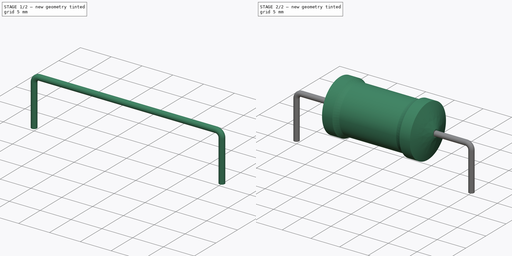
[diagram: build sequence overview — one tinted view per stage of 2, left to right]
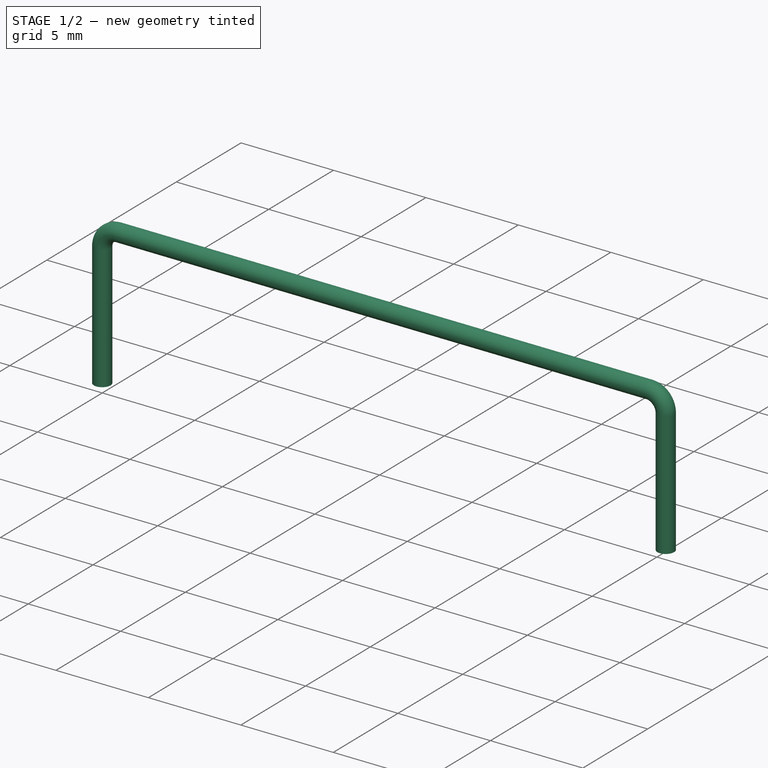
[diagram: stage 1 of 2 — iso view after this stage's code; geometry added in this stage tinted green]
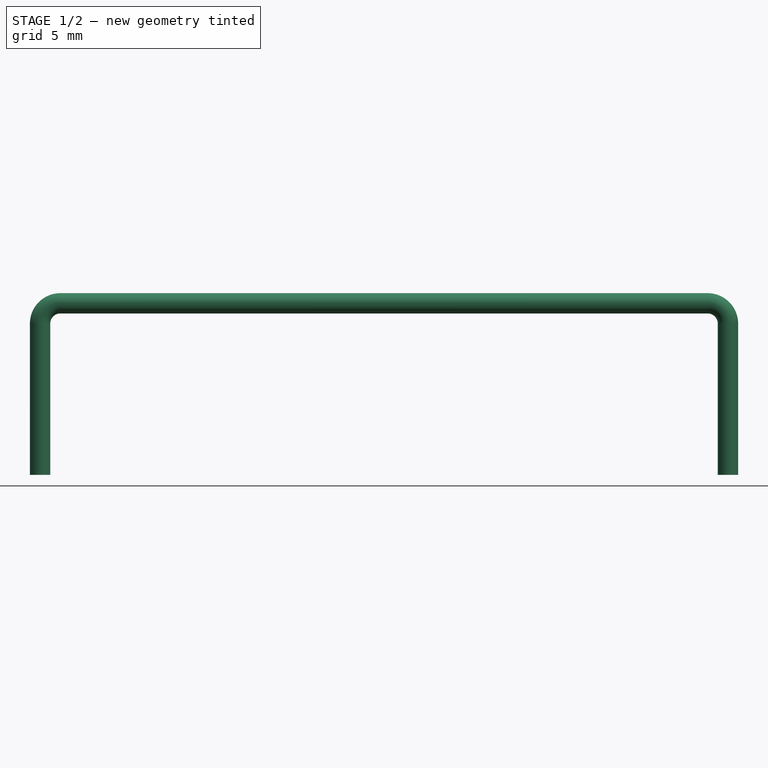
[diagram: stage 1 of 2 — front view after this stage's code; geometry added in this stage tinted green]
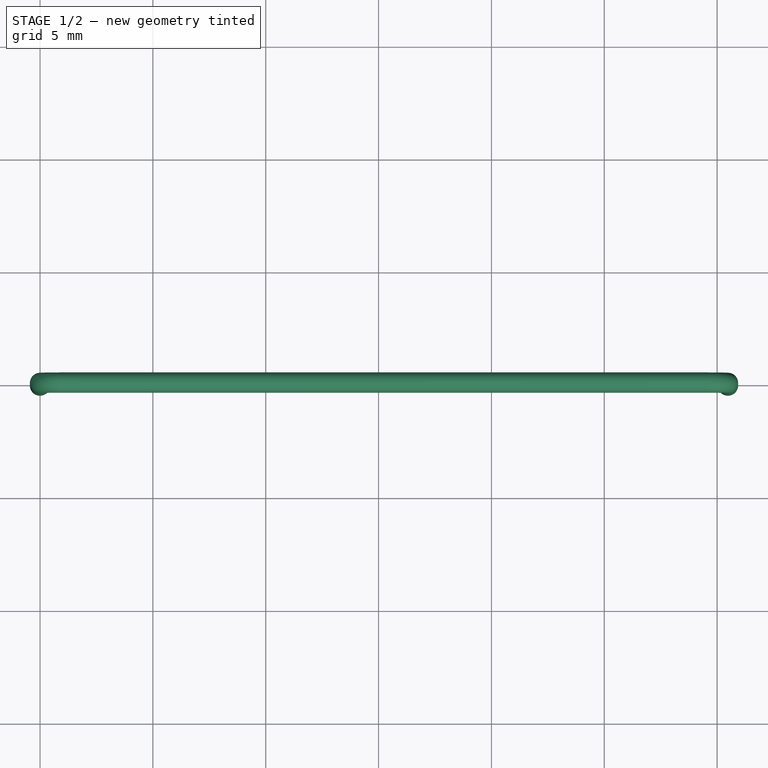
[diagram: stage 1 of 2 — top view after this stage's code; geometry added in this stage tinted green]
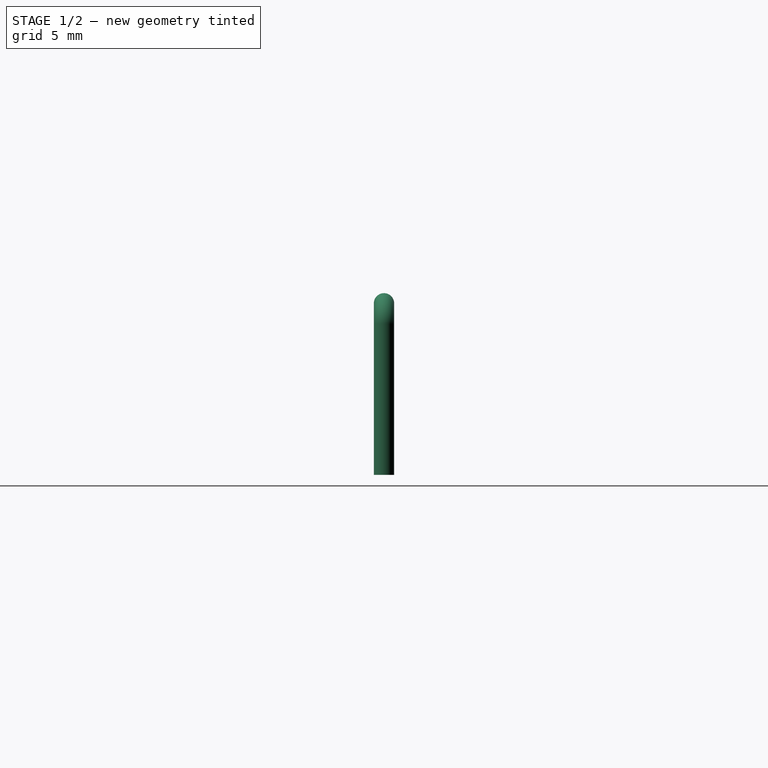
[diagram: stage 1 of 2 — right view after this stage's code; geometry added in this stage tinted green]
FCSTD DOCUMENT  (FreeCAD 0.16R6703 (Git))
Label: Resistor_Axial_DIN0918_L18.0mm_D9.0mm_P30.48mm_Horizontal
License: All rights reserved
LicenseURL: http://en.wikipedia.org/wiki/All_rights_reserved
objects: Sketcher::SketchObject×3, PartDesign::Revolution×1, Spreadsheet::Sheet×1, Part::Sweep×1
note: 6 computed .brp shape members not serialized (recipe doc carries the construction recipe); baked Part::Feature solids carry a one-line shape summary decoded from their .brp

FEATURE [Spreadsheet::Sheet] Spreadsheet  label="dimensions"
  cells = A1=L; B1(L)=18; A2=d; B2(d)=9; C2=0; A3=RM; B3(RM)=30.48; A4=d_wire; B4(d_wire)=0.8999999999999999
FEATURE [Sketcher::SketchObject] Sketch
  Placement = pos=(0,0,-2) rot=(0,0,1;0rad)
  expr: Constraints[1] = dimensions.d_wire / 2
  sketch-geometry (1):
    g0: Circle CenterX=0 CenterY=0 CenterZ=0 NormalX=0 NormalY=0 NormalZ=1 Radius=0.45
  constraints (2):
    c: Coincident(g0,g-1)
    c: Radius(g0) = 0.45
FEATURE [Part::Sweep] Sweep
  Frenet = false
  Sections = -> [Sketch]
  Solid = true
  Spine = -> Sketch001
  Transition = 1
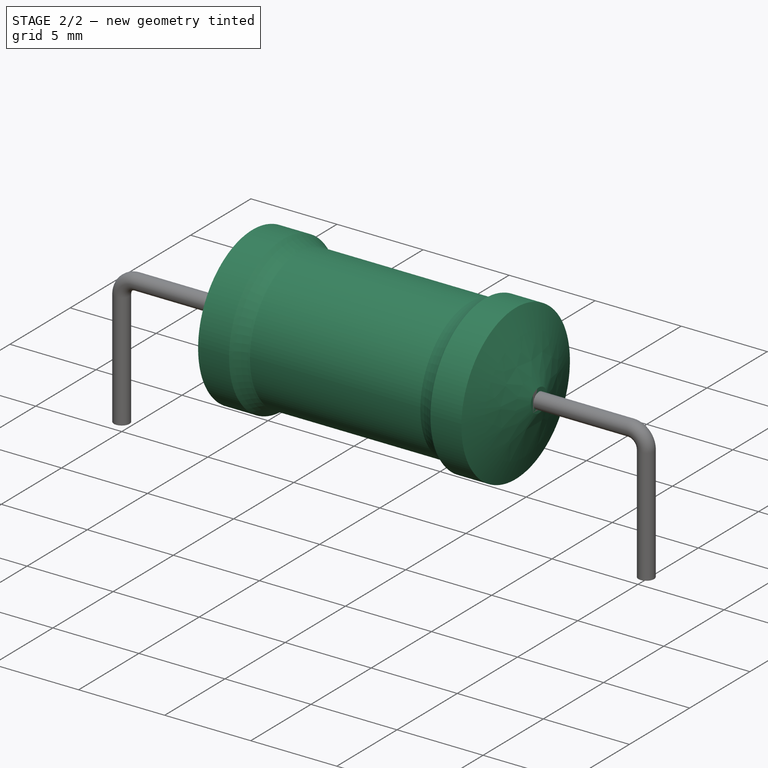
[diagram: stage 2 of 2 — iso view after this stage's code; geometry added in this stage tinted green]
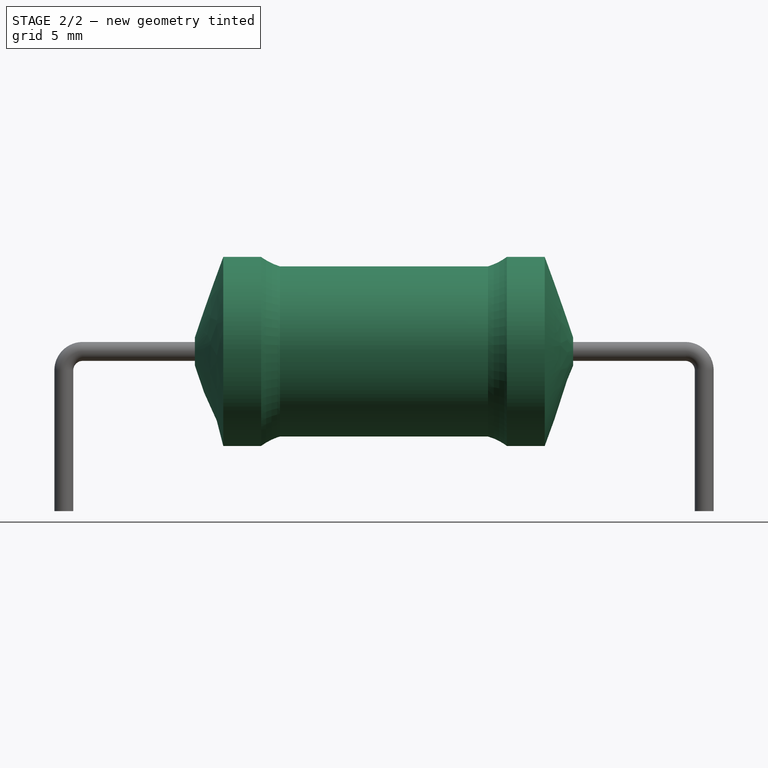
[diagram: stage 2 of 2 — front view after this stage's code; geometry added in this stage tinted green]
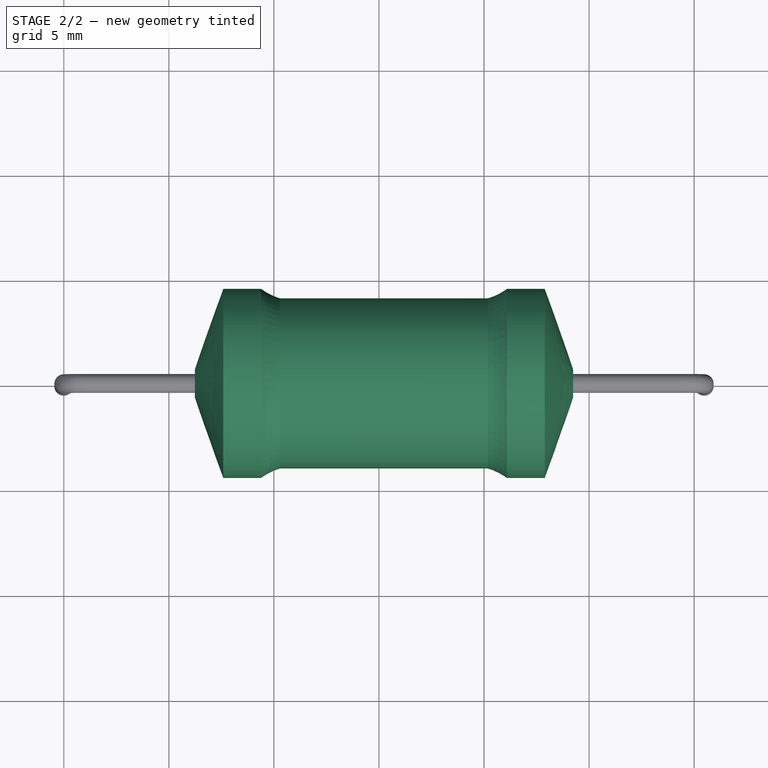
[diagram: stage 2 of 2 — top view after this stage's code; geometry added in this stage tinted green]
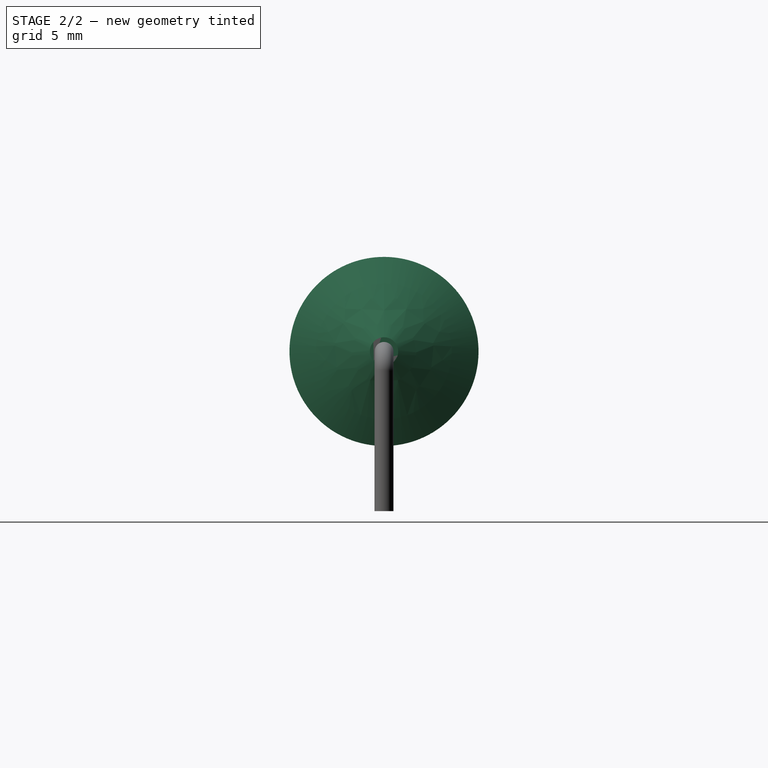
[diagram: stage 2 of 2 — right view after this stage's code; geometry added in this stage tinted green]
FEATURE [Sketcher::SketchObject] Sketch001
  Placement = pos=(0,0,0) rot=(1,0,0;1.5708rad)
  expr: Constraints[15] = dimensions.d_wire
  expr: Constraints[20] = dimensions.d_wire
  expr: Constraints[18] = dimensions.d / 2 + 0.1
  expr: Constraints[12] = dimensions.RM
  expr: Constraints[7] = dimensions.d_wire
  sketch-geometry (7):
    g0: LineSegment StartX=0 StartY=-3 StartZ=0 EndX=0 EndY=3.7 EndZ=0
    g1: ArcOfCircle CenterX=0.9 CenterY=3.7 CenterZ=0 NormalX=0 NormalY=0 NormalZ=1 Radius=0.9 StartAngle=1.57081 EndAngle=3.14159
    g2: LineSegment [constr] StartX=0 StartY=3.7 StartZ=0 EndX=0.9 EndY=3.7 EndZ=0
    g3: LineSegment [constr] StartX=0.9 StartY=3.7 StartZ=0 EndX=0.9 EndY=4.6 EndZ=0
    g4: LineSegment StartX=0.899992 StartY=4.6 StartZ=0 EndX=29.58 EndY=4.6 EndZ=0
    g5: LineSegment StartX=30.48 StartY=3.7 StartZ=0 EndX=30.48 EndY=-3 EndZ=0
    g6: ArcOfCircle CenterX=29.58 CenterY=3.7 CenterZ=0 NormalX=0 NormalY=0 NormalZ=1 Radius=0.9 StartAngle=0 EndAngle=1.5708
  constraints (23):
    c: Vertical(g0)
    c: Coincident(g1,g0)
    c: Coincident(g2,g0)
    c: Coincident(g2,g1)
    c: Horizontal(g2)
    c: Coincident(g3,g1)
    c: Vertical(g3)
    c: DistanceY(g3,g3) = 0.9
    c: Coincident(g4,g1)
    c: Horizontal(g4)
    c: Vertical(g5)
    c: Equal(g5,g0)
    c: DistanceX(g-1,g5) = 30.48
    c: Coincident(g6,g4)
    c: Coincident(g6,g5)
    c: DistanceX(g6,g5) = 0.9
    c: PointOnObject(g0,g-2)
    c: DistanceY(g0,g-1) = 3
    c: DistanceY(g-1,g1) = 4.6
    c: DistanceY(g0,g5) = 0
    c: DistanceX(g0,g1) = 0.9
    c: DistanceX(g6,g4) = 0
    c: DistanceY(g6,g5) = 0
FEATURE [Sketcher::SketchObject] Sketch002  label="Axis0"
  Placement = pos=(0,0,0) rot=(1,0,0;1.5708rad)
  expr: Constraints[44] = dimensions.L * 0.05
  expr: Constraints[32] = dimensions.d_wire * 0.75
  expr: Constraints[8] = dimensions.d / 2 + 0.1
  expr: Constraints[18] = dimensions.L * 0.05
  expr: Constraints[1] = dimensions.L
  expr: Constraints[7] = (dimensions.RM - dimensions.L) / 2
  expr: Constraints[9] = dimensions.d / 2
  expr: Constraints[19] = dimensions.L * 0.075
  expr: Constraints[27] = dimensions.L * 0.05
  expr: Constraints[25] = dimensions.L * 0.075
  expr: Constraints[20] = dimensions.L * 0.025
  expr: Constraints[28] = dimensions.L * 0.05
  expr: Constraints[26] = dimensions.d / 2
  expr: Constraints[14] = dimensions.L * 0.1
  sketch-geometry (15):
    g0: LineSegment [constr] StartX=6.24 StartY=4.6 StartZ=0 EndX=24.24 EndY=4.6 EndZ=0
    g1: LineSegment [constr] StartX=6.24 StartY=4.6 StartZ=0 EndX=6.24 EndY=0 EndZ=0
    g2: LineSegment [constr] StartX=6.24 StartY=0 StartZ=0 EndX=0 EndY=0 EndZ=0
    g3: LineSegment [constr] StartX=7.59 StartY=9.1 StartZ=0 EndX=7.59 EndY=4.6 EndZ=0
    g4: LineSegment StartX=7.59 StartY=9.1 StartZ=0 EndX=9.39 EndY=9.1 EndZ=0
    g5: ArcOfCircle CenterX=11.19 CenterY=11.575 CenterZ=0 NormalX=0 NormalY=0 NormalZ=1 Radius=3.06033 StartAngle=4.08359 EndAngle=4.41389
    g6: LineSegment StartX=10.29 StartY=8.65 StartZ=0 EndX=20.19 EndY=8.65 EndZ=0
    g7: ArcOfCircle CenterX=19.29 CenterY=11.575 CenterZ=0 NormalX=0 NormalY=0 NormalZ=1 Radius=3.06033 StartAngle=5.01089 EndAngle=5.34119
    g8: LineSegment StartX=21.09 StartY=9.1 StartZ=0 EndX=22.89 EndY=9.1 EndZ=0
    g9: LineSegment [constr] StartX=127.25 StartY=-35.2837 StartZ=0 EndX=-96.77 EndY=-35.2837 EndZ=0
    g10: LineSegment StartX=6.24 StartY=4.6 StartZ=0 EndX=24.24 EndY=4.6 EndZ=0
    g11: LineSegment StartX=6.24 StartY=4.6 StartZ=0 EndX=6.24 EndY=5.275 EndZ=0
    g12: ArcOfCircle CenterX=127.25 CenterY=-35.2837 CenterZ=0 NormalX=0 NormalY=0 NormalZ=1 Radius=127.626 StartAngle=2.78641 EndAngle=2.81819
    g13: LineSegment StartX=24.24 StartY=4.6 StartZ=0 EndX=24.24 EndY=5.275 EndZ=0
    g14: ArcOfCircle CenterX=-96.77 CenterY=-35.2837 CenterZ=0 NormalX=0 NormalY=0 NormalZ=1 Radius=127.626 StartAngle=0.323401 EndAngle=0.355184
  constraints (45):
    c: Horizontal(g0)
    c: DistanceX(g0,g0) = 18
    c: Coincident(g1,g0)
    c: Vertical(g1)
    c: Coincident(g2,g1)
    c: Coincident(g2,g-1)
    c: Horizontal(g2)
    c: DistanceX(g2,g2) = 6.24
    c: DistanceY(g1,g1) = 4.6
    c: DistanceY(g3,g3) = 4.5
    c: PointOnObject(g3,g0)
    c: Perpendicular(g0,g3)
    c: Coincident(g4,g3)
    c: Horizontal(g4)
    c: DistanceX(g4,g4) = 1.8
    c: Coincident(g5,g4)
    c: Horizontal(g6)
    c: Coincident(g5,g6)
    c: DistanceX(g4,g5) = 0.9
    c: DistanceX(g0,g3) = 1.35
    c: DistanceY(g5,g4) = 0.45
    c: Coincident(g7,g6)
    c: Coincident(g8,g7)
    c: Horizontal(g8)
    c: Equal(g8,g4)
    c: DistanceX(g8,g0) = 1.35
    c: DistanceY(g0,g7) = 4.5
    c: DistanceX(g6,g7) = 0.9
    c: DistanceX(g7,g6) = 0.9
    c: Parallel(g0,g9)
    c: Coincident(g10,g0)
    c: Vertical(g11)
    c: DistanceY(g11,g11) = 0.675
    c: Coincident(g12,g11)
    c: Coincident(g12,g3)
    c: Coincident(g12,g9)
    c: Coincident(g11,g0)
    c: Coincident(g13,g0)
    c: Vertical(g13)
    c: Equal(g13,g11)
    c: Coincident(g14,g13)
    c: Coincident(g14,g9)
    c: Coincident(g8,g14)
    c: Coincident(g10,g0)
    c: DistanceX(g5,g5) = 0.9
FEATURE [PartDesign::Revolution] Revolution
  Angle = 360
  Axis = (18,0,0)
  Base = (6.24,0,4.6)
  Placement = pos=(0,0,0) rot=(1,0,0;1.5708rad)
  ReferenceAxis = -> Sketch002 [Axis0]
  Sketch = -> Sketch002
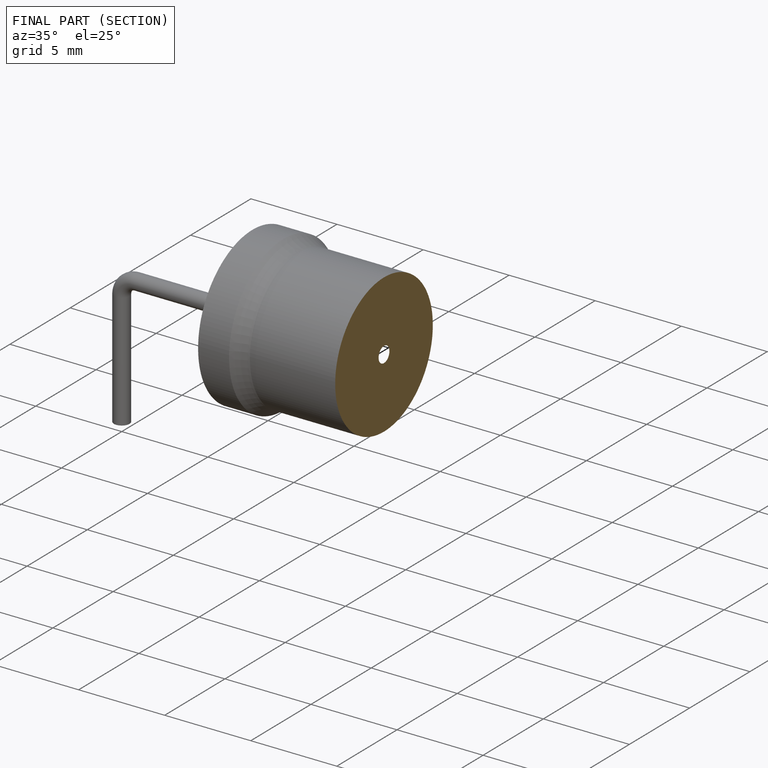
[diagram: finished part — half-section view (interior)]
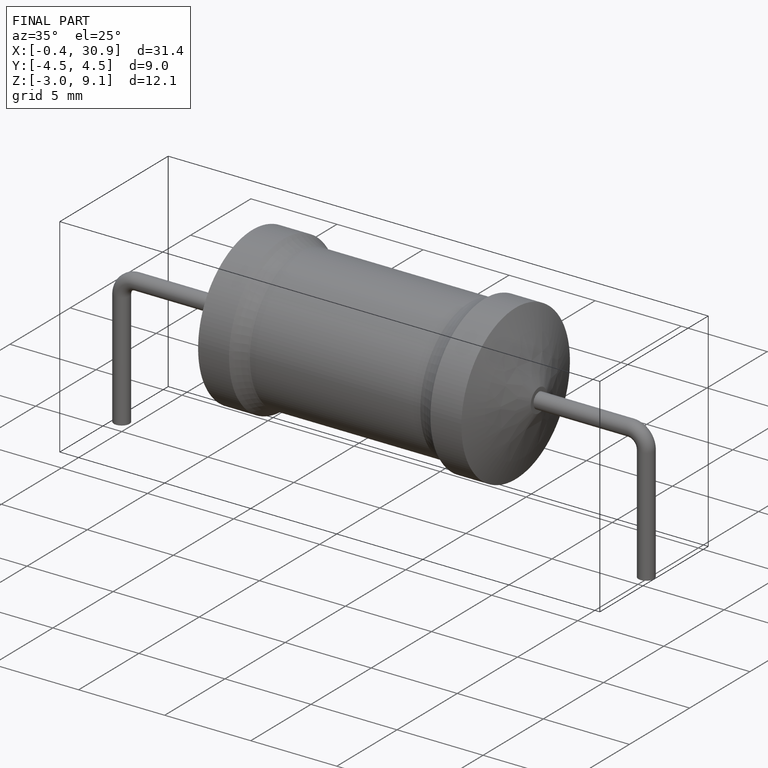
[diagram: finished part — iso view with bounding-box wireframe]
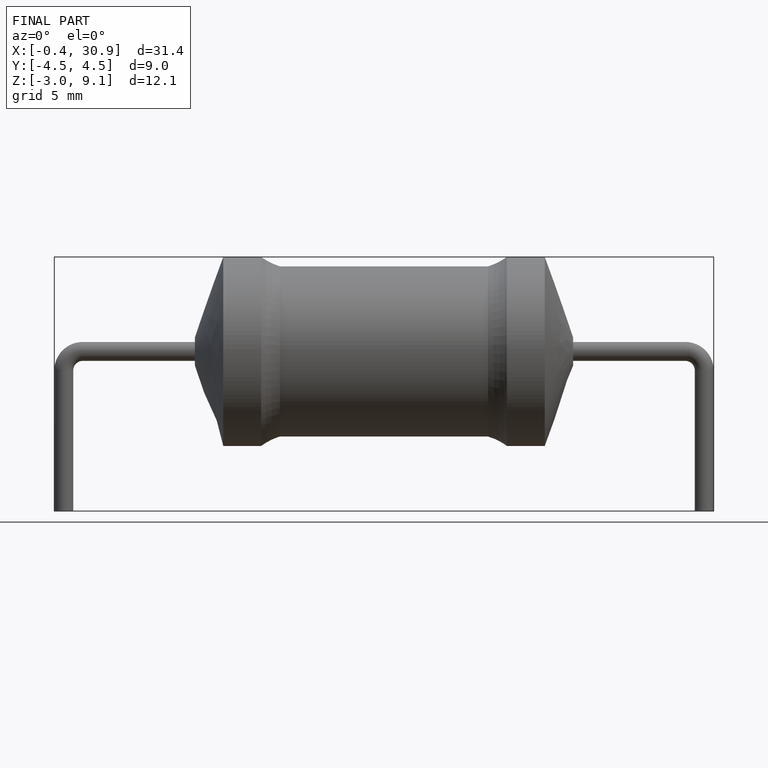
[diagram: finished part — front view with bounding-box wireframe]
